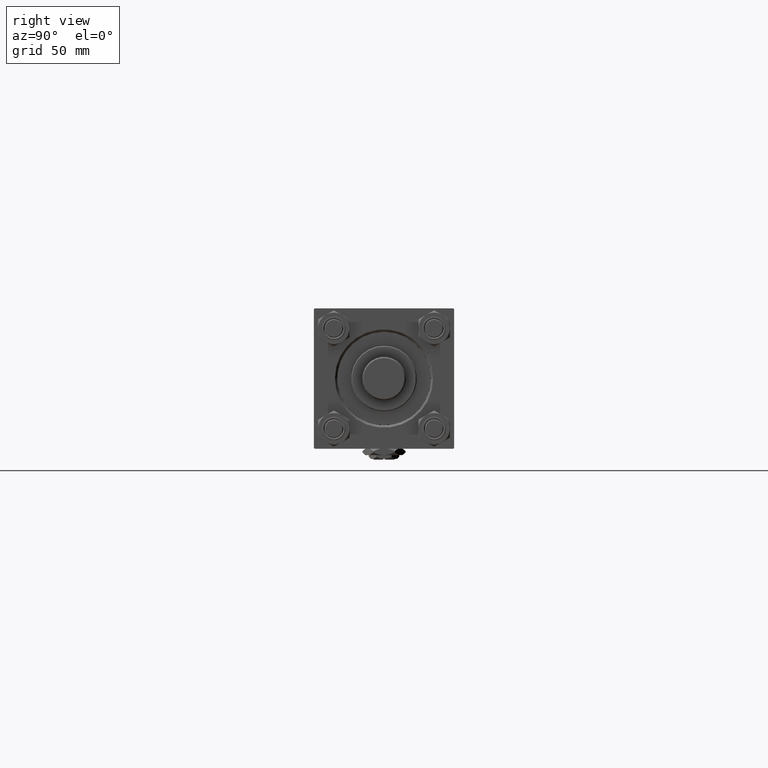
[diagram: clean part render]
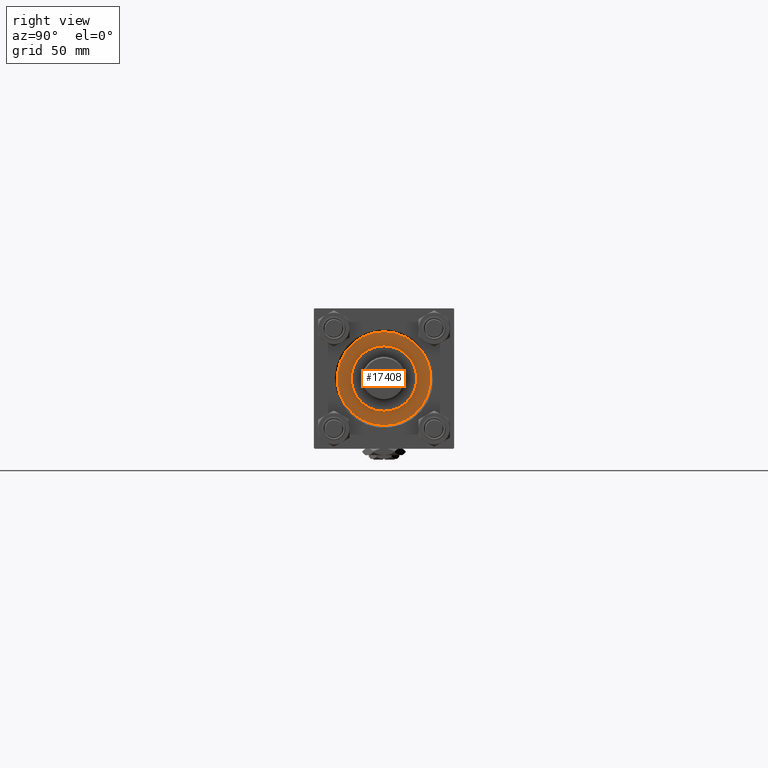
[diagram: same view with one face highlighted and labeled with its STEP entity id]
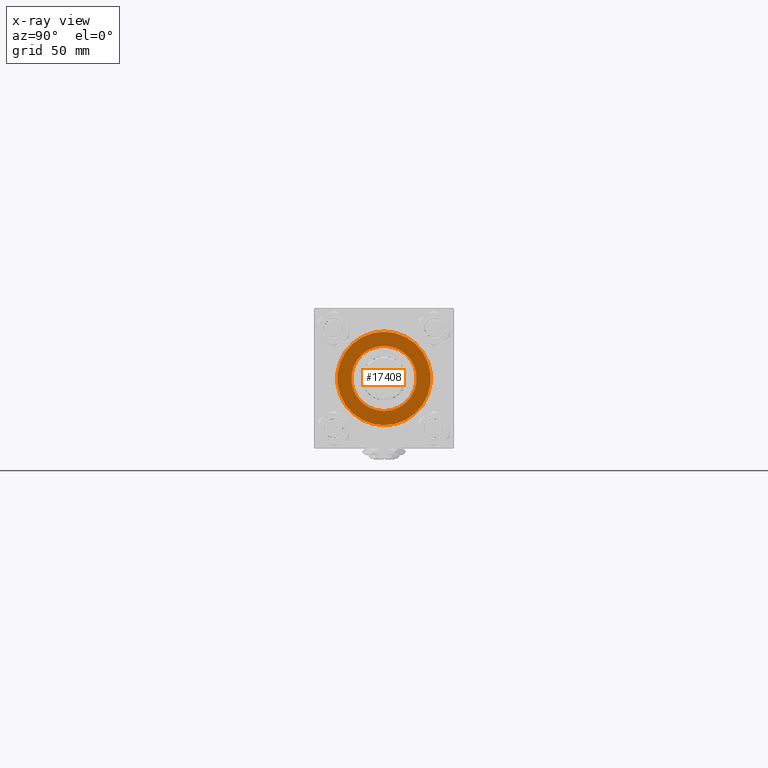
[diagram: x-ray of the same camera — body ghosted, the highlighted face saturated]
A machine part, right view. The second image highlights one B-rep face of the part: STEP entity #17408.
The next image is the same camera in x-ray: the body ghosted, the highlighted face saturated — about 0% of this face is hidden behind the body in this view.
In plain terms, the highlighted planar face has unit normal (1, -0, 0).
Its self-contained STEP definition (entity closure, byte-faithful):
#152 = CIRCLE ( 'NONE', #22952, 21.00000000000000000 ) ;
#487 = CARTESIAN_POINT ( 'NONE',  ( -21.00000000000000000, 0.000000000000000000, 28.69999999999999929 ) ) ;
#1549 = DIRECTION ( 'NONE',  ( 0.000000000000000000, 0.000000000000000000, 1.000000000000000000 ) ) ;
#3452 = AXIS2_PLACEMENT_3D ( 'NONE', #33967, #50089, #25517 ) ;
#4329 = CARTESIAN_POINT ( 'NONE',  ( 0.000000000000000000, 0.000000000000000000, 28.69999999999999929 ) ) ;
#4708 = VERTEX_POINT ( 'NONE', #20124 ) ;
#5048 = DIRECTION ( 'NONE',  ( 0.000000000000000000, 0.000000000000000000, 1.000000000000000000 ) ) ;
#5329 = DIRECTION ( 'NONE',  ( 0.000000000000000000, 0.000000000000000000, 1.000000000000000000 ) ) ;
#8186 = CARTESIAN_POINT ( 'NONE',  ( 21.00000000000000000, 2.571758278209441661E-15, 28.69999999999999929 ) ) ;
#8303 = FACE_OUTER_BOUND ( 'NONE', #18670, .T. ) ;
#9534 = CARTESIAN_POINT ( 'NONE',  ( -30.00000000000000000, 0.000000000000000000, 28.69999999999999929 ) ) ;
#9604 = AXIS2_PLACEMENT_3D ( 'NONE', #21713, #5048, #25405 ) ;
#10391 = ORIENTED_EDGE ( 'NONE', *, *, #17878, .T. ) ;
#12376 = EDGE_CURVE ( 'NONE', #27820, #4708, #46536, .T. ) ;
#12656 = CARTESIAN_POINT ( 'NONE',  ( 0.000000000000000000, 0.000000000000000000, 28.69999999999999929 ) ) ;
#14892 = EDGE_CURVE ( 'NONE', #16892, #15323, #152, .T. ) ;
#15323 = VERTEX_POINT ( 'NONE', #8186 ) ;
#16892 = VERTEX_POINT ( 'NONE', #487 ) ;
#17145 = AXIS2_PLACEMENT_3D ( 'NONE', #4329, #44244, #20459 ) ;
#17408 = ADVANCED_FACE ( 'NONE', ( #28137, #8303 ), #24423, .T. ) ;
#17498 = CARTESIAN_POINT ( 'NONE',  ( 0.000000000000000000, 0.000000000000000000, 28.69999999999999929 ) ) ;
#17878 = EDGE_CURVE ( 'NONE', #4708, #27820, #38244, .T. ) ;
#18670 = EDGE_LOOP ( 'NONE', ( #26730, #10391 ) ) ;
#20124 = CARTESIAN_POINT ( 'NONE',  ( 30.00000000000000000, 3.673940397442059178E-15, 28.69999999999999929 ) ) ;
#20459 = DIRECTION ( 'NONE',  ( 1.000000000000000000, 0.000000000000000000, -0.000000000000000000 ) ) ;
#21702 = EDGE_LOOP ( 'NONE', ( #40076, #36708 ) ) ;
#21713 = CARTESIAN_POINT ( 'NONE',  ( 0.000000000000000000, 0.000000000000000000, 28.69999999999999929 ) ) ;
#22952 = AXIS2_PLACEMENT_3D ( 'NONE', #17498, #5329, #28859 ) ;
#24423 = PLANE ( 'NONE',  #17145 ) ;
#25405 = DIRECTION ( 'NONE',  ( 1.000000000000000000, 0.000000000000000000, 0.000000000000000000 ) ) ;
#25517 = DIRECTION ( 'NONE',  ( 1.000000000000000000, 0.000000000000000000, 0.000000000000000000 ) ) ;
#26730 = ORIENTED_EDGE ( 'NONE', *, *, #12376, .T. ) ;
#27820 = VERTEX_POINT ( 'NONE', #9534 ) ;
#27965 = AXIS2_PLACEMENT_3D ( 'NONE', #12656, #1549, #49907 ) ;
#28137 = FACE_BOUND ( 'NONE', #21702, .T. ) ;
#28859 = DIRECTION ( 'NONE',  ( 1.000000000000000000, 0.000000000000000000, 0.000000000000000000 ) ) ;
#30484 = CIRCLE ( 'NONE', #3452, 21.00000000000000000 ) ;
#33967 = CARTESIAN_POINT ( 'NONE',  ( 0.000000000000000000, 0.000000000000000000, 28.69999999999999929 ) ) ;
#36708 = ORIENTED_EDGE ( 'NONE', *, *, #40363, .F. ) ;
#38244 = CIRCLE ( 'NONE', #9604, 30.00000000000000000 ) ;
#40076 = ORIENTED_EDGE ( 'NONE', *, *, #14892, .F. ) ;
#40363 = EDGE_CURVE ( 'NONE', #15323, #16892, #30484, .T. ) ;
#44244 = DIRECTION ( 'NONE',  ( 0.000000000000000000, 0.000000000000000000, 1.000000000000000000 ) ) ;
#46536 = CIRCLE ( 'NONE', #27965, 30.00000000000000000 ) ;
#49907 = DIRECTION ( 'NONE',  ( 1.000000000000000000, 0.000000000000000000, 0.000000000000000000 ) ) ;
#50089 = DIRECTION ( 'NONE',  ( 0.000000000000000000, 0.000000000000000000, 1.000000000000000000 ) ) ;